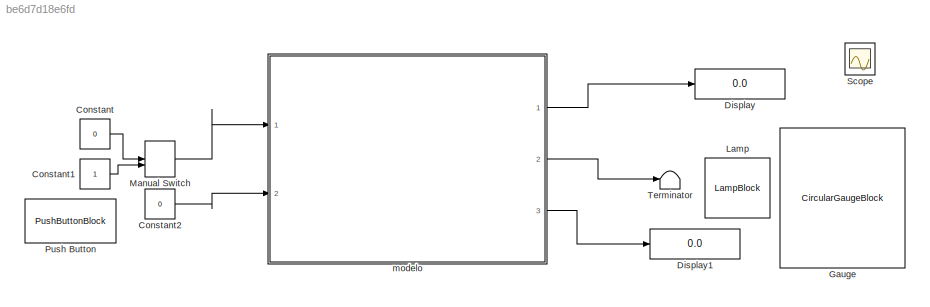
MODEL slx_be6d7d18e6fd
KIND model
CONFIG AbsTol = auto
CONFIG EnableMultiTasking = off
CONFIG FixedStep = auto
CONFIG MaxStep = auto
CONFIG MinStep = auto
CONFIG RelTol = 1e-3
CONFIG SampleTimeConstraint = Unconstrained
CONFIG SolverName = VariableStepAuto
CONFIG StartTime = 0.0
CONFIG StopTime = 20
BLOCK [Constant] Constant
  Value = 0
BLOCK [Constant] Constant1
BLOCK [Constant] Constant2
  Value = 0
BLOCK [Display] Display
  Decimation = 1
  Ports = [1]
BLOCK [Display] Display1
  Decimation = 1
  Ports = [1]
BLOCK [CircularGaugeBlock] Gauge
  ScaleMax = 10
BLOCK [LampBlock] Lamp
BLOCK [ManualSwitch] Manual Switch
  CurrentSetting = 0
BLOCK [PushButtonBlock] Push Button
BLOCK [Scope] Scope
  Floating = off
  NumInputPorts = 3
  Ports = [3]
  ScopeSpecificationString = Simulink.scopes.TimeScopeBlockCfg('CurrentConfiguration', extmgr.ConfigurationSet(extmgr.Configuration('Core','General UI',true),extmgr.Configuration('Core','Source UI',true),extmgr.Configuration('Sources','WiredSimulink',true),extmgr.Configuration('Visuals','Time Domain',true,'SerializedDisplays',{struct('MinYLimReal','-0.125','MaxYLimReal','1.125','YLabelReal','','MinYLimMag','0','MaxYLimMag','1...<+2666ch>
BLOCK [Terminator] Terminator
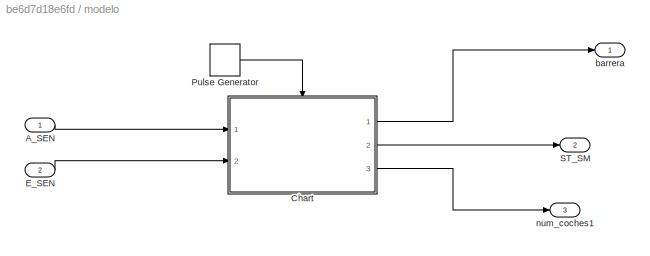
BLOCK [SubSystem] modelo
  Ports = [2, 3]
  RequestExecContextInheritance = off
BLOCK [Inport] modelo/A_SEN
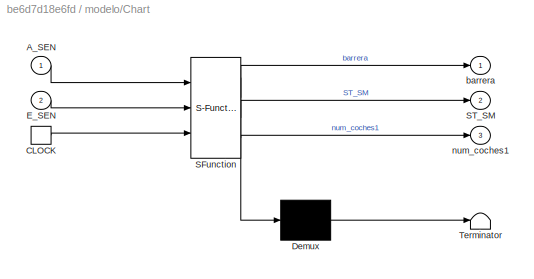
BLOCK [SubSystem] modelo/Chart
  ErrorFcn = Stateflow.Translate.translate
  PermitHierarchicalResolution = ExplicitOnly
  Ports = [2, 3, 0, 1]
  RequestExecContextInheritance = off
  SFBlockType = Chart
  TreatAsAtomicUnit = on
BLOCK [Demux] modelo/Chart/ Demux 
  Outputs = 1
  Ports = [1, 1]
BLOCK [S-Function] modelo/Chart/ SFunction 
  EnableBusSupport = on
  FunctionName = sf_sfun
  PortCounts = [3 4]
  Ports = [3, 4]
  SFcnIsStateOwnerBlock = off
  SFunctionDeploymentMode = off
  Tag = Stateflow S-Function 3
BLOCK [Terminator] modelo/Chart/ Terminator 
BLOCK [Inport] modelo/Chart/A_SEN
BLOCK [TriggerPort] modelo/Chart/CLOCK
  Ports = [0, 1]
  ShowOutputPort = on
  StatesWhenEnabling = held
  TriggerType = either
  VariantControl = (inherit)
BLOCK [Inport] modelo/Chart/E_SEN
  Port = 2
BLOCK [Outport] modelo/Chart/ST_SM
  Port = 2
BLOCK [Outport] modelo/Chart/barrera
BLOCK [Outport] modelo/Chart/num_coches1
  Port = 3
BLOCK [Inport] modelo/E_SEN
  Port = 2
BLOCK [DiscretePulseGenerator] modelo/Pulse Generator
  Period = 0.5
  Ports = [0, 1]
  PulseType = Time based
  PulseWidth = 50
BLOCK [Outport] modelo/ST_SM
  Port = 2
BLOCK [Outport] modelo/barrera
BLOCK [Outport] modelo/num_coches1
  Port = 3
LINE Constant1:1 -> Manual Switch:2
LINE Constant2:1 -> modelo:2
LINE Constant:1 -> Manual Switch:1
LINE Manual Switch:1 -> modelo:1
LINE modelo/A_SEN:1 -> modelo/Chart:1
LINE modelo/Chart:1 -> modelo/barrera:1
LINE modelo/Chart:2 -> modelo/ST_SM:1
LINE modelo/Chart:3 -> modelo/num_coches1:1
LINE modelo/E_SEN:1 -> modelo/Chart:2
LINE modelo/Pulse Generator:1 -> modelo/Chart:trigger
LINE modelo:1 -> Display:1
LINE modelo:2 -> Terminator:1
LINE modelo:3 -> Display1:1
CHART modelo/Chart states=10 transitions=13
  STATE_LABEL 'ESTADO_LIBRE'
  STATE_LABEL 'ENTRA_COCHE\nentry:\nbarrera=1;\nnum_coches=num_coches +1;\nnum_coches1=num_coches;\n'
  STATE_LABEL 'ENTRA_COCHE_2\nentry:\nbarrera=0;\n'
  STATE_LABEL 'PASO_OCUPADO\nentry:\nevento_ON_OFF=0;\nST_SM=0;\n'
  STATE_LABEL 'INICIO\nentry:\nbarrera=0;'
  STATE_LABEL 'SALE_COCHE\nentry:\nnum_coches=num_coches -1;\nnum_coches1=num_coches;\n'
  STATE_LABEL '[A_SEN==1]'
  STATE_LABEL '[num_coches==10]'
  STATE_LABEL '[A_SEN==0]'
  STATE_LABEL '[E_SEN==0]'
  STATE_LABEL '[E_SEN==1]'
  STATE_LABEL 'ENTRA_COCHE\nentry:\nbarrera=1;\nnum_coches=num_coches +1;\nnum_coches1=num_coches;\n'
  STATE_LABEL 'ENTRA_COCHE_2\nentry:\nbarrera=0;\n'
  STATE_LABEL 'PASO_OCUPADO\nentry:\nevento_ON_OFF=0;\nST_SM=0;\n'
  STATE_LABEL 'INICIO\nentry:\nbarrera=0;'
  STATE_LABEL 'SALE_COCHE\nentry:\nnum_coches=num_coches -1;\nnum_coches1=num_coches;\n'
  STATE_LABEL 'ESTADO_OCUPADO'
  STATE_LABEL 'RESTA_COCHES\nentry:\nnum_coches=num_coches-1;\nnum_coches1=num_coches;'
  STATE_LABEL 'INICIO\nentry:\nbarrera=0;'
  STATE_LABEL 'PASAR_LIBRE\nentry:\nevento_ON_OFF=1;\nST_SM=1;'
  STATE_LABEL '[E_SEN==1]'
  STATE_LABEL '[E_SEN==0]'
  STATE_LABEL 'RESTA_COCHES\nentry:\nnum_coches=num_coches-1;\nnum_coches1=num_coches;'
  STATE_LABEL 'INICIO\nentry:\nbarrera=0;'
  STATE_LABEL 'PASAR_LIBRE\nentry:\nevento_ON_OFF=1;\nST_SM=1;'
CHART  states=0 transitions=0
